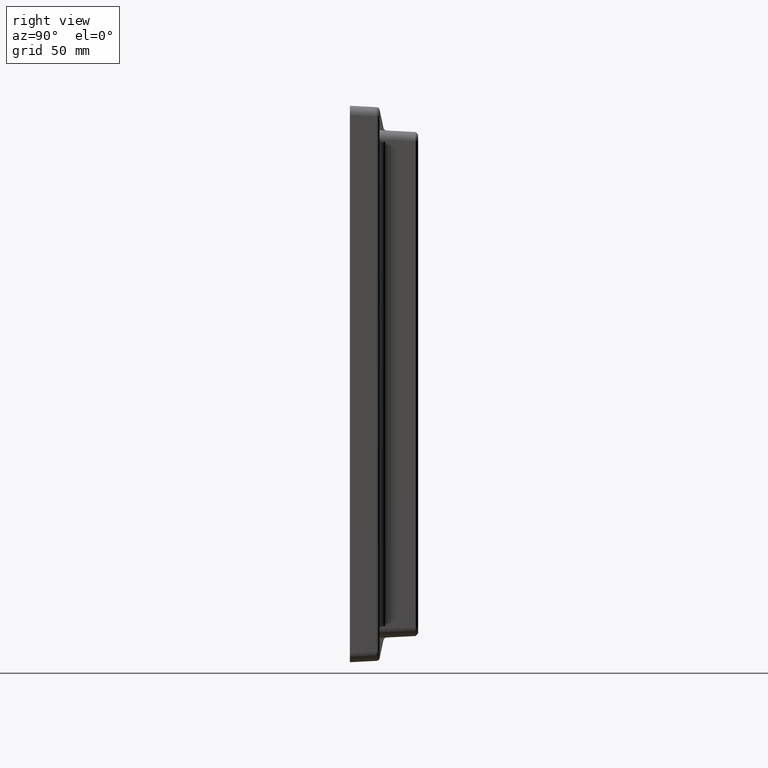
[diagram: clean part render]
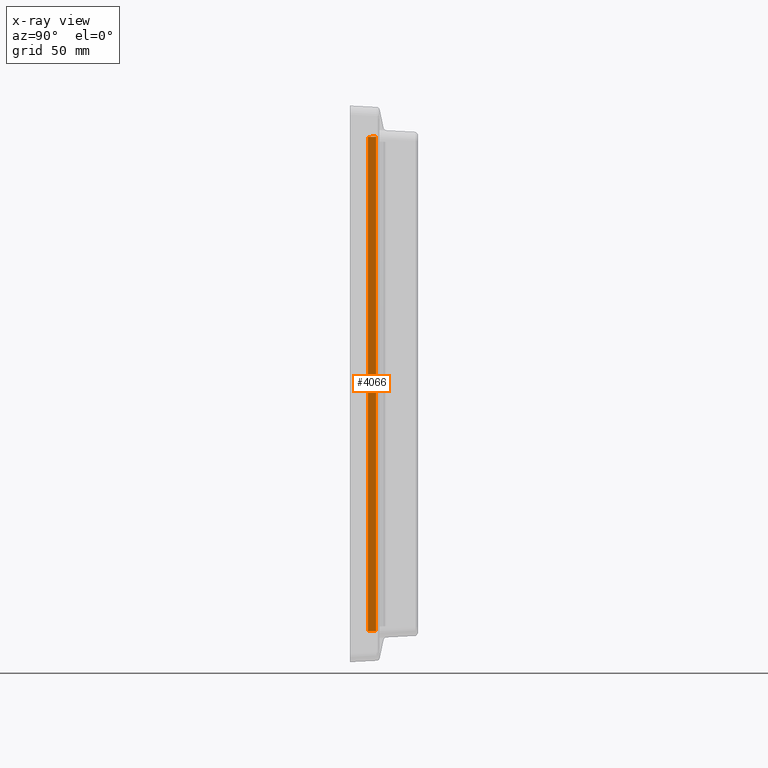
[diagram: x-ray — body ghosted, one internal face saturated and labeled with its STEP entity id]
A machine part, right view, then the same camera in x-ray: the body is ghosted and one INTERNAL B-rep face — a face not visible from any outside direction — is saturated and labeled: STEP entity #4066.
In plain terms, the highlighted planar face has unit normal (0.9994, -0.0349, 0).
Its self-contained STEP definition (entity closure, byte-faithful):
#234 = EDGE_CURVE ( 'NONE', #5477, #3765, #3656, .T. ) ;
#965 = LINE ( 'NONE', #4616, #3304 ) ;
#1435 = CARTESIAN_POINT ( 'NONE',  ( 135.7451935338436600, 8.135375599214402300, -151.8740643045675500 ) ) ;
#1555 = CARTESIAN_POINT ( 'NONE',  ( 135.4603887745198000, -0.02036562496303157000, -151.5941874470576900 ) ) ;
#1604 = DIRECTION ( 'NONE',  ( 0.03489949670250104600, 0.9993908270190956500, 0.0000000000000000000 ) ) ;
#1772 = DIRECTION ( 'NONE',  ( 1.203121388569646700E-018, 3.445288881317348700E-017, -1.000000000000000000 ) ) ;
#1788 = VERTEX_POINT ( 'NONE', #4844 ) ;
#1842 = FACE_OUTER_BOUND ( 'NONE', #3017, .T. ) ;
#1854 = VERTEX_POINT ( 'NONE', #3884 ) ;
#1933 = CARTESIAN_POINT ( 'NONE',  ( 135.4610999578147000, 3.469446951953614200E-015, -151.0000000000000600 ) ) ;
#2017 = DIRECTION ( 'NONE',  ( 0.03487899055459543800, 0.9988036077738138300, -0.03427548855823893400 ) ) ;
#2620 = ORIENTED_EDGE ( 'NONE', *, *, #4378, .F. ) ;
#2748 = EDGE_CURVE ( 'NONE', #1854, #1788, #4271, .T. ) ;
#3017 = EDGE_LOOP ( 'NONE', ( #6130, #4555, #2620, #4249 ) ) ;
#3243 = DIRECTION ( 'NONE',  ( 0.0000000000000000000, 0.0000000000000000000, -1.000000000000000000 ) ) ;
#3304 = VECTOR ( 'NONE', #1772, 1000.000000000000000 ) ;
#3531 = EDGE_CURVE ( 'NONE', #1788, #5477, #5334, .T. ) ;
#3656 = LINE ( 'NONE', #1555, #4248 ) ;
#3765 = VERTEX_POINT ( 'NONE', #1435 ) ;
#3884 = CARTESIAN_POINT ( 'NONE',  ( 135.7451935338436600, 8.135375599214391700, 151.8740643045675500 ) ) ;
#4066 = ADVANCED_FACE ( 'NONE', ( #1842 ), #4972, .T. ) ;
#4248 = VECTOR ( 'NONE', #2017, 999.9999999999998900 ) ;
#4249 = ORIENTED_EDGE ( 'NONE', *, *, #2748, .T. ) ;
#4271 = LINE ( 'NONE', #5506, #4577 ) ;
#4378 = EDGE_CURVE ( 'NONE', #1854, #3765, #965, .T. ) ;
#4499 = CARTESIAN_POINT ( 'NONE',  ( 135.5658622662899400, 3.000000000000000000, -151.6978359587514500 ) ) ;
#4555 = ORIENTED_EDGE ( 'NONE', *, *, #234, .T. ) ;
#4577 = VECTOR ( 'NONE', #5968, 999.9999999999998900 ) ;
#4616 = CARTESIAN_POINT ( 'NONE',  ( 135.7451935338436600, 8.135375599214402300, -151.0000000000000600 ) ) ;
#4844 = CARTESIAN_POINT ( 'NONE',  ( 135.5658622662899400, 3.000000000000000000, 151.6978359587513400 ) ) ;
#4958 = AXIS2_PLACEMENT_3D ( 'NONE', #1933, #6307, #1604 ) ;
#4972 = PLANE ( 'NONE',  #4958 ) ;
#5334 = LINE ( 'NONE', #5614, #5814 ) ;
#5477 = VERTEX_POINT ( 'NONE', #4499 ) ;
#5506 = CARTESIAN_POINT ( 'NONE',  ( 135.0993494531333900, -10.35917907727713300, 151.2393950940541200 ) ) ;
#5614 = CARTESIAN_POINT ( 'NONE',  ( 135.5658622662899400, 3.000000000000000000, -151.0000000000000600 ) ) ;
#5814 = VECTOR ( 'NONE', #3243, 1000.000000000000000 ) ;
#5968 = DIRECTION ( 'NONE',  ( -0.03487899055459543800, -0.9988036077738138300, -0.03427548855823893400 ) ) ;
#6130 = ORIENTED_EDGE ( 'NONE', *, *, #3531, .T. ) ;
#6307 = DIRECTION ( 'NONE',  ( 0.9993908270190957600, -0.03489949670250105200, 0.0000000000000000000 ) ) ;